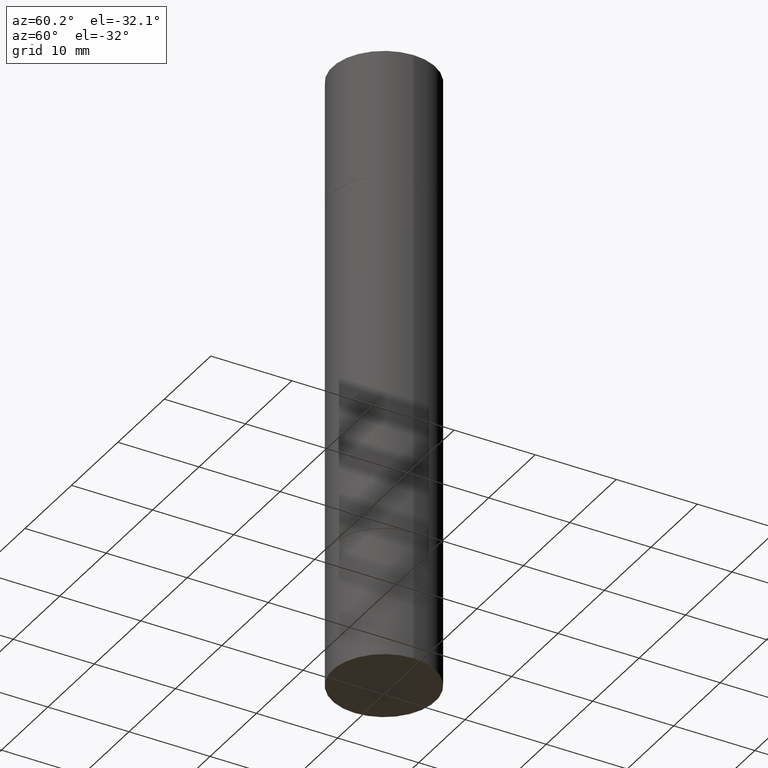
[diagram: clean part render]
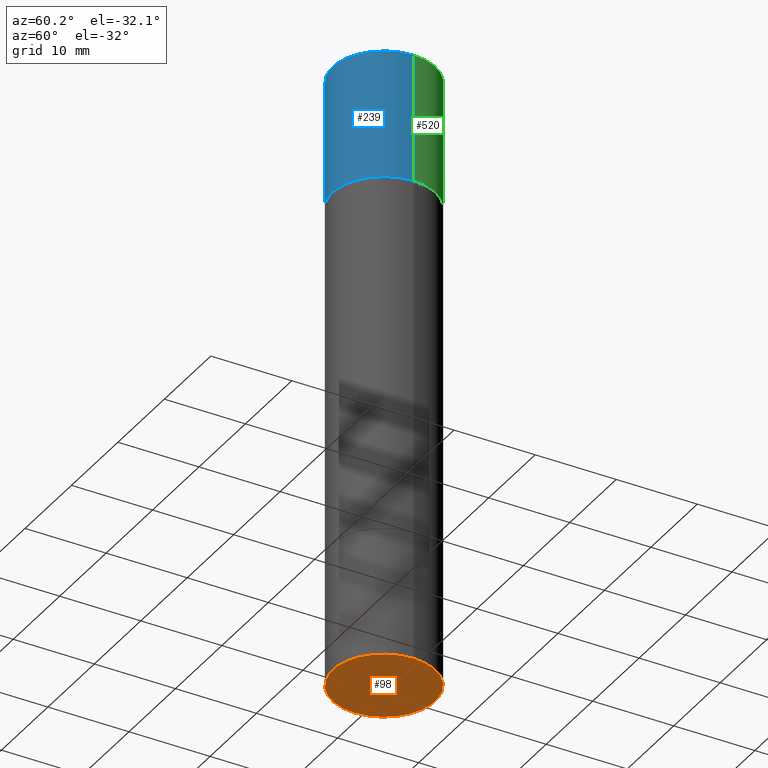
[diagram: same view with three faces highlighted in distinct colors, each labeled with its STEP entity id]
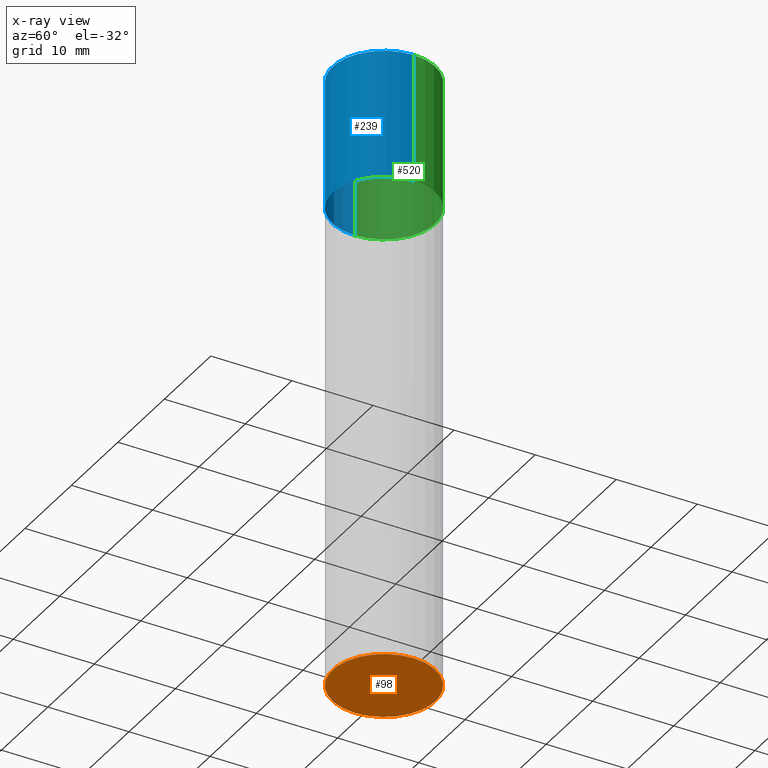
[diagram: x-ray of the same camera — body ghosted, the three highlighted faces saturated]
A machine part, auxiliary view with three faces highlighted in distinct colors.
The next image is the same camera in x-ray (body ghosted, the three faces saturated) — at least one of them is partly hidden behind the body in this view.
Their STEP definitions:

[orange] entity #98 — the highlighted planar face has unit normal (0, -0, -1).
#62 = ORIENTED_EDGE ( 'NONE', *, *, #493, .F. ) ;
#65 = AXIS2_PLACEMENT_3D ( 'NONE', #357, #470, #413 ) ;
#71 = CARTESIAN_POINT ( 'NONE',  ( 7.336406418555409790E-29, -1.047444401652943635E-14, -3.000000000000000444 ) ) ;
#98 = ADVANCED_FACE ( 'NONE', ( #244 ), #603, .T. ) ;
#110 = VERTEX_POINT ( 'NONE', #508 ) ;
#191 = AXIS2_PLACEMENT_3D ( 'NONE', #401, #349, #562 ) ;
#244 = FACE_OUTER_BOUND ( 'NONE', #656, .T. ) ;
#349 = DIRECTION ( 'NONE',  ( 2.438088387897960049E-29, -3.491481338843145188E-15, -1.000000000000000000 ) ) ;
#357 = CARTESIAN_POINT ( 'NONE',  ( 7.336406418555409790E-29, -1.047444401652943635E-14, -3.000000000000000444 ) ) ;
#370 = VERTEX_POINT ( 'NONE', #492 ) ;
#401 = CARTESIAN_POINT ( 'NONE',  ( 1.745740669421639647E-15, 0.2499999999999895084, -3.000000000000001332 ) ) ;
#413 = DIRECTION ( 'NONE',  ( 1.000000000000000000, -6.982962677686262766E-15, 0.000000000000000000 ) ) ;
#446 = CIRCLE ( 'NONE', #622, 0.2500000000000000000 ) ;
#448 = DIRECTION ( 'NONE',  ( -2.445468806185136597E-29, 3.491481338843145583E-15, 1.000000000000000000 ) ) ;
#470 = DIRECTION ( 'NONE',  ( -2.445468806185136597E-29, 3.491481338843145583E-15, 1.000000000000000000 ) ) ;
#492 = CARTESIAN_POINT ( 'NONE',  ( -0.2500000000000000000, -7.606999258740704349E-15, -3.000000000000000444 ) ) ;
#493 = EDGE_CURVE ( 'NONE', #110, #370, #570, .T. ) ;
#508 = CARTESIAN_POINT ( 'NONE',  ( 0.2500000000000000000, -1.222018468595100303E-14, -3.000000000000000444 ) ) ;
#561 = DIRECTION ( 'NONE',  ( 1.000000000000000000, -6.982962677686262766E-15, 0.000000000000000000 ) ) ;
#562 = DIRECTION ( 'NONE',  ( -1.000000000000000000, 6.982962677686265922E-15, -4.876176775795935793E-29 ) ) ;
#570 = CIRCLE ( 'NONE', #65, 0.2500000000000000000 ) ;
#603 = PLANE ( 'NONE',  #191 ) ;
#608 = EDGE_CURVE ( 'NONE', #370, #110, #446, .T. ) ;
#618 = ORIENTED_EDGE ( 'NONE', *, *, #608, .F. ) ;
#622 = AXIS2_PLACEMENT_3D ( 'NONE', #71, #448, #561 ) ;
#656 = EDGE_LOOP ( 'NONE', ( #62, #618 ) ) ;

[blue] entity #239 — the highlighted cylindrical surface (partial cylindrical patch) has radius 6.35 mm, axis along (-0, -0, -1).
#26 = VECTOR ( 'NONE', #88, 39.37007874015748143 ) ;
#38 = CARTESIAN_POINT ( 'NONE',  ( -0.2500000000000000000, -8.761433126149462132E-15, -2.999999999999999112 ) ) ;
#39 = EDGE_CURVE ( 'NONE', #408, #336, #298, .T. ) ;
#40 = FACE_OUTER_BOUND ( 'NONE', #498, .T. ) ;
#42 = CIRCLE ( 'NONE', #201, 0.2500000000000000000 ) ;
#53 = EDGE_CURVE ( 'NONE', #306, #146, #138, .T. ) ;
#88 = DIRECTION ( 'NONE',  ( -2.445468806185136877E-29, -3.492890411551753071E-15, -1.000000000000000000 ) ) ;
#102 = CARTESIAN_POINT ( 'NONE',  ( 0.2500000000000000000, -1.743627060358652092E-15, 1.092739197465705287E-15 ) ) ;
#108 = DIRECTION ( 'NONE',  ( 1.000000000000000000, -6.982962677686266711E-15, 0.000000000000000000 ) ) ;
#123 = CARTESIAN_POINT ( 'NONE',  ( 0.2500000000000000000, -3.926683567578497071E-15, -0.6249999999999988898 ) ) ;
#127 = CARTESIAN_POINT ( 'NONE',  ( 0.2500000000000000000, -1.222229829501391170E-14, -2.999999999999999112 ) ) ;
#134 = AXIS2_PLACEMENT_3D ( 'NONE', #576, #429, #268 ) ;
#138 = LINE ( 'NONE', #38, #142 ) ;
#142 = VECTOR ( 'NONE', #303, 39.37007874015748143 ) ;
#146 = VERTEX_POINT ( 'NONE', #583 ) ;
#201 = AXIS2_PLACEMENT_3D ( 'NONE', #361, #376, #575 ) ;
#211 = CARTESIAN_POINT ( 'NONE',  ( 5.807988414689700538E-29, -2.180942898156930788E-15, -0.6249999999999988898 ) ) ;
#220 = CYLINDRICAL_SURFACE ( 'NONE', #134, 0.2500000000000000000 ) ;
#222 = ORIENTED_EDGE ( 'NONE', *, *, #53, .T. ) ;
#238 = AXIS2_PLACEMENT_3D ( 'NONE', #211, #579, #108 ) ;
#239 = ADVANCED_FACE ( 'NONE', ( #40 ), #220, .T. ) ;
#268 = DIRECTION ( 'NONE',  ( 1.000000000000000000, -6.982962677686270655E-15, 0.000000000000000000 ) ) ;
#298 = LINE ( 'NONE', #127, #26 ) ;
#303 = DIRECTION ( 'NONE',  ( -2.445468806185136877E-29, -3.492890411551753071E-15, -1.000000000000000000 ) ) ;
#306 = VERTEX_POINT ( 'NONE', #543 ) ;
#336 = VERTEX_POINT ( 'NONE', #123 ) ;
#343 = CIRCLE ( 'NONE', #238, 0.2500000000000000000 ) ;
#361 = CARTESIAN_POINT ( 'NONE',  ( 7.336406418555409790E-29, 2.113609062914567177E-18, 1.092739197465705287E-15 ) ) ;
#376 = DIRECTION ( 'NONE',  ( 2.445468806185136597E-29, 3.492890411551752677E-15, 1.000000000000000000 ) ) ;
#391 = EDGE_CURVE ( 'NONE', #146, #336, #343, .T. ) ;
#404 = EDGE_CURVE ( 'NONE', #306, #408, #42, .T. ) ;
#408 = VERTEX_POINT ( 'NONE', #102 ) ;
#426 = ORIENTED_EDGE ( 'NONE', *, *, #39, .F. ) ;
#429 = DIRECTION ( 'NONE',  ( -2.445468806185136597E-29, -3.492890411551752677E-15, -1.000000000000000000 ) ) ;
#498 = EDGE_LOOP ( 'NONE', ( #674, #222, #593, #426 ) ) ;
#543 = CARTESIAN_POINT ( 'NONE',  ( -0.2500000000000000000, 6.257098548958748880E-16, 1.092739197465709232E-15 ) ) ;
#575 = DIRECTION ( 'NONE',  ( 1.000000000000000000, -6.982962677686266711E-15, 0.000000000000000000 ) ) ;
#576 = CARTESIAN_POINT ( 'NONE',  ( 0.000000000000000000, -1.047655762559234344E-14, -2.999999999999999112 ) ) ;
#579 = DIRECTION ( 'NONE',  ( 2.445468806185136597E-29, 3.492890411551752677E-15, 1.000000000000000000 ) ) ;
#583 = CARTESIAN_POINT ( 'NONE',  ( -0.2500000000000000000, 6.257098548958748880E-16, -0.6249999999999988898 ) ) ;
#593 = ORIENTED_EDGE ( 'NONE', *, *, #391, .T. ) ;
#674 = ORIENTED_EDGE ( 'NONE', *, *, #404, .F. ) ;

[green] entity #520 — the highlighted cylindrical surface (partial cylindrical patch) has radius 6.35 mm, axis along (-0, -0, -1).
#10 = CYLINDRICAL_SURFACE ( 'NONE', #620, 0.2500000000000000000 ) ;
#26 = VECTOR ( 'NONE', #88, 39.37007874015748143 ) ;
#38 = CARTESIAN_POINT ( 'NONE',  ( -0.2500000000000000000, -8.761433126149462132E-15, -2.999999999999999112 ) ) ;
#39 = EDGE_CURVE ( 'NONE', #408, #336, #298, .T. ) ;
#45 = DIRECTION ( 'NONE',  ( 2.445468806185136597E-29, 3.492890411551752677E-15, 1.000000000000000000 ) ) ;
#53 = EDGE_CURVE ( 'NONE', #306, #146, #138, .T. ) ;
#58 = ORIENTED_EDGE ( 'NONE', *, *, #203, .T. ) ;
#70 = ORIENTED_EDGE ( 'NONE', *, *, #457, .F. ) ;
#88 = DIRECTION ( 'NONE',  ( -2.445468806185136877E-29, -3.492890411551753071E-15, -1.000000000000000000 ) ) ;
#89 = CIRCLE ( 'NONE', #264, 0.2500000000000000000 ) ;
#102 = CARTESIAN_POINT ( 'NONE',  ( 0.2500000000000000000, -1.743627060358652092E-15, 1.092739197465705287E-15 ) ) ;
#120 = DIRECTION ( 'NONE',  ( 1.000000000000000000, -6.982962677686270655E-15, 0.000000000000000000 ) ) ;
#123 = CARTESIAN_POINT ( 'NONE',  ( 0.2500000000000000000, -3.926683567578497071E-15, -0.6249999999999988898 ) ) ;
#127 = CARTESIAN_POINT ( 'NONE',  ( 0.2500000000000000000, -1.222229829501391170E-14, -2.999999999999999112 ) ) ;
#138 = LINE ( 'NONE', #38, #142 ) ;
#142 = VECTOR ( 'NONE', #303, 39.37007874015748143 ) ;
#146 = VERTEX_POINT ( 'NONE', #583 ) ;
#203 = EDGE_CURVE ( 'NONE', #336, #146, #89, .T. ) ;
#213 = ORIENTED_EDGE ( 'NONE', *, *, #39, .T. ) ;
#217 = ORIENTED_EDGE ( 'NONE', *, *, #53, .F. ) ;
#264 = AXIS2_PLACEMENT_3D ( 'NONE', #358, #573, #305 ) ;
#275 = CARTESIAN_POINT ( 'NONE',  ( 7.336406418555409790E-29, 2.113609062914567177E-18, 1.092739197465705287E-15 ) ) ;
#298 = LINE ( 'NONE', #127, #26 ) ;
#301 = CIRCLE ( 'NONE', #415, 0.2500000000000000000 ) ;
#303 = DIRECTION ( 'NONE',  ( -2.445468806185136877E-29, -3.492890411551753071E-15, -1.000000000000000000 ) ) ;
#305 = DIRECTION ( 'NONE',  ( 1.000000000000000000, -6.982962677686266711E-15, 0.000000000000000000 ) ) ;
#306 = VERTEX_POINT ( 'NONE', #543 ) ;
#336 = VERTEX_POINT ( 'NONE', #123 ) ;
#358 = CARTESIAN_POINT ( 'NONE',  ( 5.807988414689700538E-29, -2.180942898156930788E-15, -0.6249999999999988898 ) ) ;
#408 = VERTEX_POINT ( 'NONE', #102 ) ;
#415 = AXIS2_PLACEMENT_3D ( 'NONE', #275, #45, #423 ) ;
#423 = DIRECTION ( 'NONE',  ( 1.000000000000000000, -6.982962677686266711E-15, 0.000000000000000000 ) ) ;
#432 = CARTESIAN_POINT ( 'NONE',  ( 0.000000000000000000, -1.047655762559234344E-14, -2.999999999999999112 ) ) ;
#457 = EDGE_CURVE ( 'NONE', #408, #306, #301, .T. ) ;
#479 = FACE_OUTER_BOUND ( 'NONE', #485, .T. ) ;
#485 = EDGE_LOOP ( 'NONE', ( #217, #70, #213, #58 ) ) ;
#520 = ADVANCED_FACE ( 'NONE', ( #479 ), #10, .T. ) ;
#543 = CARTESIAN_POINT ( 'NONE',  ( -0.2500000000000000000, 6.257098548958748880E-16, 1.092739197465709232E-15 ) ) ;
#573 = DIRECTION ( 'NONE',  ( 2.445468806185136597E-29, 3.492890411551752677E-15, 1.000000000000000000 ) ) ;
#583 = CARTESIAN_POINT ( 'NONE',  ( -0.2500000000000000000, 6.257098548958748880E-16, -0.6249999999999988898 ) ) ;
#620 = AXIS2_PLACEMENT_3D ( 'NONE', #432, #640, #120 ) ;
#640 = DIRECTION ( 'NONE',  ( -2.445468806185136597E-29, -3.492890411551752677E-15, -1.000000000000000000 ) ) ;